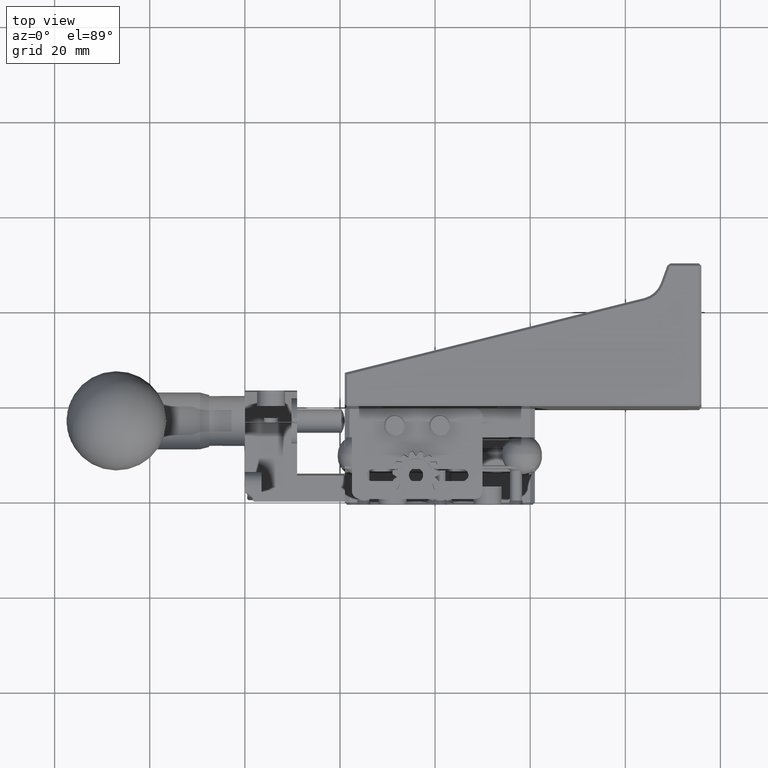
[diagram: clean part render]
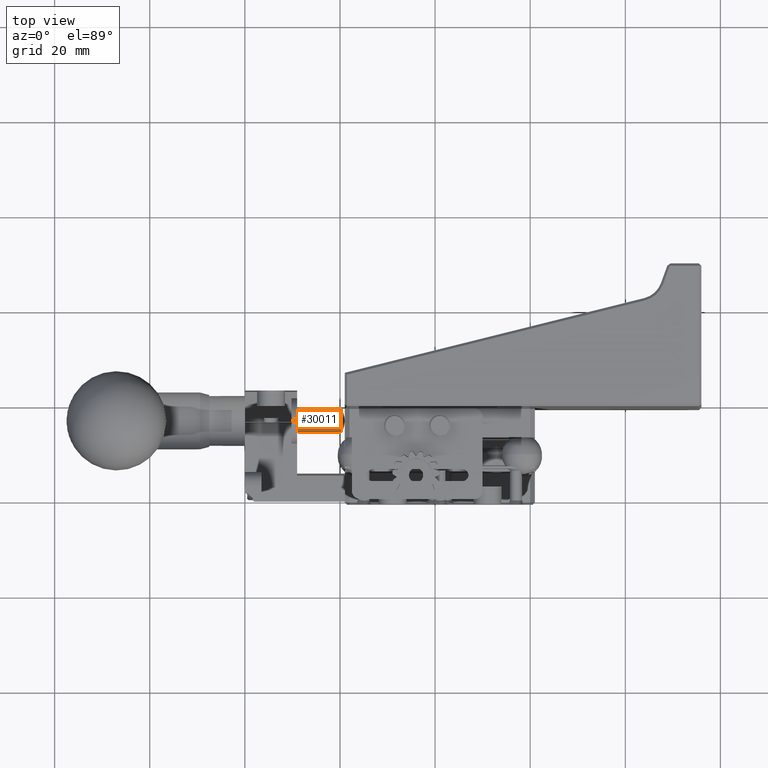
[diagram: same view with one face highlighted and labeled with its STEP entity id]
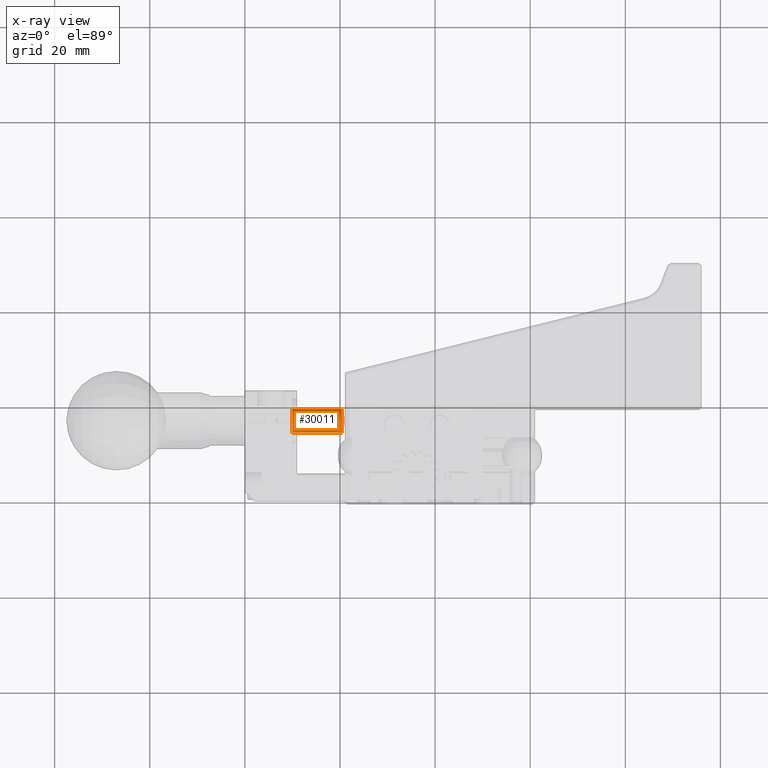
[diagram: x-ray of the same camera — body ghosted, the highlighted face saturated]
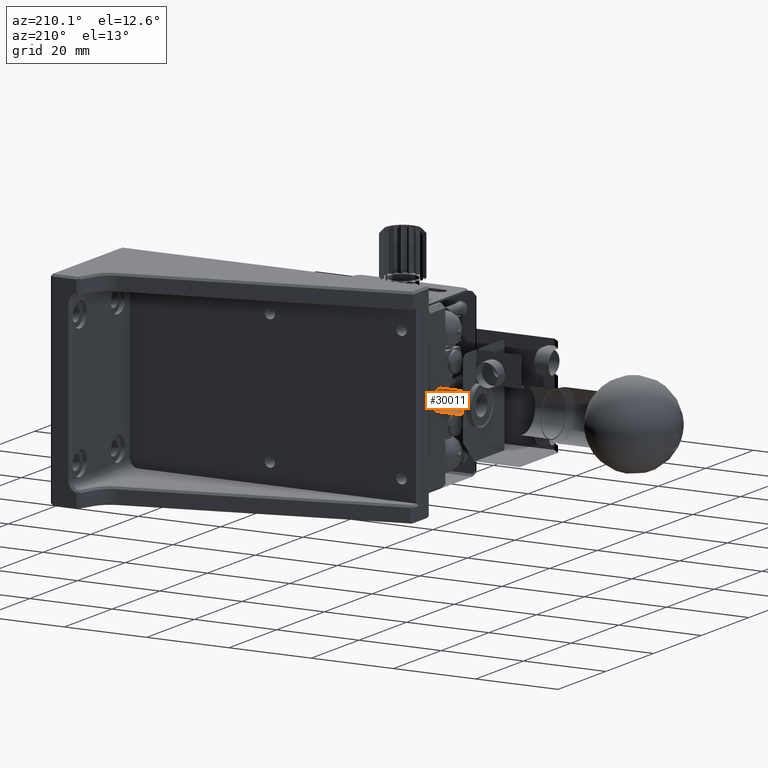
[diagram: same view with one face highlighted and labeled with its STEP entity id]
A machine part, top view. The second image highlights one B-rep face of the part: STEP entity #30011.
The next image is the same camera in x-ray: the body ghosted, the highlighted face saturated — about 0% of this face is hidden behind the body in this view.
A second angle (auxiliary view) of the same face is appended — the face is thin or edge-on in the first view.
In plain terms, the highlighted cylindrical surface (bore or boss wall) has radius 2.5 mm, axis along (-1, 0, -0).
Its self-contained STEP definition (entity closure, byte-faithful):
#45 = AXIS2_PLACEMENT_3D ( 'NONE', #4269, #34450, #19393 ) ;
#697 = VERTEX_POINT ( 'NONE', #27451 ) ;
#1085 = DIRECTION ( 'NONE',  ( 0.000000000000000000, 0.000000000000000000, 1.000000000000000000 ) ) ;
#4269 = CARTESIAN_POINT ( 'NONE',  ( 20.32999999999999474, 16.80000000000000071, -2.987305952522963825E-18 ) ) ;
#11368 = ORIENTED_EDGE ( 'NONE', *, *, #28627, .T. ) ;
#13698 = EDGE_LOOP ( 'NONE', ( #37667 ) ) ;
#15767 = FACE_OUTER_BOUND ( 'NONE', #27842, .T. ) ;
#16503 = AXIS2_PLACEMENT_3D ( 'NONE', #31047, #42667, #1085 ) ;
#19393 = DIRECTION ( 'NONE',  ( 0.000000000000000000, 0.000000000000000000, 1.000000000000000000 ) ) ;
#19744 = CARTESIAN_POINT ( 'NONE',  ( -37.50000000000000000, 16.80000000000000071, -1.040834085586080066E-16 ) ) ;
#23906 = DIRECTION ( 'NONE',  ( 0.000000000000000000, 0.000000000000000000, 1.000000000000000000 ) ) ;
#25228 = CIRCLE ( 'NONE', #16503, 2.500000000000000000 ) ;
#27451 = CARTESIAN_POINT ( 'NONE',  ( 10.00000000000000178, 16.80000000000000071, 2.500000000000000000 ) ) ;
#27842 = EDGE_LOOP ( 'NONE', ( #11368 ) ) ;
#28543 = CARTESIAN_POINT ( 'NONE',  ( 20.32999999999999474, 16.80000000000000071, 2.500000000000000000 ) ) ;
#28627 = EDGE_CURVE ( 'NONE', #47630, #47630, #42728, .T. ) ;
#30011 = ADVANCED_FACE ( 'NONE', ( #15767, #38507 ), #41982, .T. ) ;
#31047 = CARTESIAN_POINT ( 'NONE',  ( 10.00000000000000178, 16.80000000000000071, -2.104580050415460056E-17 ) ) ;
#32648 = AXIS2_PLACEMENT_3D ( 'NONE', #19744, #34800, #23906 ) ;
#34272 = EDGE_CURVE ( 'NONE', #697, #697, #25228, .T. ) ;
#34450 = DIRECTION ( 'NONE',  ( -1.000000000000000000, 0.000000000000000000, -1.748160169567439944E-18 ) ) ;
#34800 = DIRECTION ( 'NONE',  ( -1.000000000000000000, 0.000000000000000000, -1.748160169567439944E-18 ) ) ;
#37667 = ORIENTED_EDGE ( 'NONE', *, *, #34272, .T. ) ;
#38507 = FACE_OUTER_BOUND ( 'NONE', #13698, .T. ) ;
#41982 = CYLINDRICAL_SURFACE ( 'NONE', #32648, 2.500000000000000000 ) ;
#42667 = DIRECTION ( 'NONE',  ( 1.000000000000000000, -0.000000000000000000, 1.748160169567439944E-18 ) ) ;
#42728 = CIRCLE ( 'NONE', #45, 2.500000000000000000 ) ;
#47630 = VERTEX_POINT ( 'NONE', #28543 ) ;